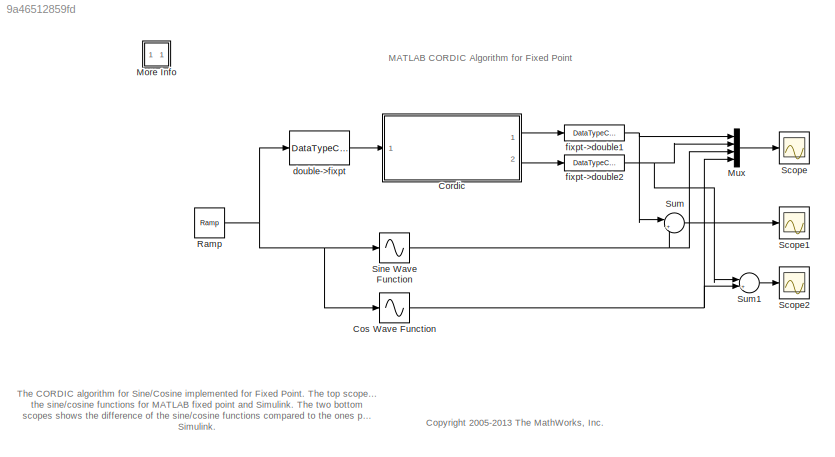
MODEL slx_9a46512859fd
KIND model
CONFIG AbsTol = auto
CONFIG FixedStep = 0.1
CONFIG MaxStep = auto
CONFIG MinStep = auto
CONFIG RelTol = 1e-3
CONFIG SampleTimeConstraint = Unconstrained
CONFIG Solver = FixedStepDiscrete
CONFIG SolverMode = Auto
CONFIG SolverName = FixedStepDiscrete
CONFIG StartTime = 0.0
CONFIG StopTime = 10.0
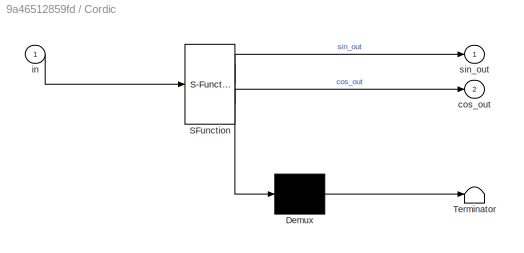
BLOCK [SubSystem] Cordic
  ErrorFcn = Stateflow.Translate.translate
  PermitHierarchicalResolution = ParametersOnly
  Ports = [1, 2]
  RequestExecContextInheritance = off
  SFBlockType = MATLAB Function
  TreatAsAtomicUnit = on
  Variant = off
BLOCK [Demux] Cordic/ Demux 
  Outputs = 1
  Ports = [1, 1]
BLOCK [S-Function] Cordic/ SFunction 
  EnableBusSupport = off
  FunctionName = sf_sfun
  PortCounts = [1 3]
  Ports = [1, 3]
  SFunctionDeploymentMode = off
  Tag = Stateflow S-Function eml_cordic_tmp 1
BLOCK [Terminator] Cordic/ Terminator 
BLOCK [Outport] Cordic/cos_out
  IconDisplay = Port number
  Port = 2
BLOCK [Inport] Cordic/in
  IconDisplay = Port number
BLOCK [Outport] Cordic/sin_out
  IconDisplay = Port number
BLOCK [Sin] Cos Wave Function
  Phase = pi/2
  Ports = [1, 1]
  SampleTime = 0
  TimeSource = Use external signal
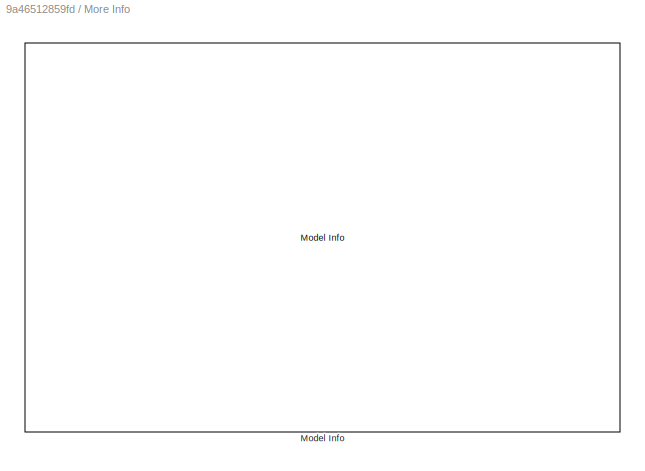
BLOCK [SubSystem] More Info
  Ports = []
  RequestExecContextInheritance = off
  Variant = off
BLOCK [Reference] More Info/Model Info  REF=simulink/Model-Wide
Utilities/Model Info
  DisplayStringWithTags = Model Description:\n-------------------\n\n%<Description>
  Frame = on
  HorizontalTextAlignment = Left
  LeftAlignmentValue = 0.02
  MaskDisplayString = Model Description:\n-------------------\n\nMATLAB CORDIC Algorithm for Fixed Point\n\nThis model demonstrates how you could implement the CORDIC algorithm for\nfixed point. The CORDIC algorithm is an interative algorithm to compute the\nsine/cosine functions by the use of a small lookup table.\n\nThe MATLAB Function blocks in this model support code generation with\nReal-Time Workshop and Real-Tim...<+353ch>
  Ports = []
  SourceBlock = simulink/Model-Wide\nUtilities/Model Info
  SourceType = CMBlock
BLOCK [Mux] Mux
  DisplayOption = bar
  Ports = [4, 1]
BLOCK [Reference] Ramp  REF=simulink/Sources/Ramp
  Ports = [0, 1]
  SourceBlock = simulink/Sources/Ramp
  SourceType = Ramp
  VectorParams1D = on
  X0 = 0
  slope = 1
  start = 0
BLOCK [Scope] Scope
  DataFormat = StructureWithTime
  Decimation = 1
  Grid = on
  LimitDataPoints = off
  MaxDataPoints = 5000
  NumInputPorts = 1
  Ports = [1]
  SampleInput = off
  SampleTime = -1
  SaveName = ScopeData
  SaveToWorkspace = off
  ShowLegends = off
  TickLabels = OneTimeTick
  TimeRange = auto
  YMax = 1.2
  YMin = -1.2
  ZoomMode = on
BLOCK [Scope] Scope1
  DataFormat = StructureWithTime
  Decimation = 1
  Grid = on
  LimitDataPoints = off
  MaxDataPoints = 5000
  NumInputPorts = 1
  Ports = [1]
  SampleInput = off
  SampleTime = -1
  SaveName = ScopeData1
  SaveToWorkspace = off
  ShowLegends = off
  TickLabels = OneTimeTick
  TimeRange = auto
  YMax = 2e-008
  YMin = -2e-008
  ZoomMode = on
BLOCK [Scope] Scope2
  DataFormat = StructureWithTime
  Decimation = 1
  Grid = on
  LimitDataPoints = off
  MaxDataPoints = 5000
  NumInputPorts = 1
  Ports = [1]
  SampleInput = off
  SampleTime = -1
  SaveName = ScopeData2
  SaveToWorkspace = off
  ShowLegends = off
  TickLabels = OneTimeTick
  TimeRange = auto
  YMax = 2e-008
  YMin = -2e-008
  ZoomMode = on
BLOCK [Sin] Sine Wave Function
  Ports = [1, 1]
  SampleTime = 0
  TimeSource = Use external signal
BLOCK [Sum] Sum
  IconShape = round
  InputSameDT = off
  Inputs = |+-
  OutDataTypeStr = Inherit: Inherit via internal rule
  Ports = [2, 1]
  SaturateOnIntegerOverflow = off
BLOCK [Sum] Sum1
  IconShape = round
  InputSameDT = off
  Inputs = |+-
  OutDataTypeStr = Inherit: Inherit via internal rule
  Ports = [2, 1]
  SaturateOnIntegerOverflow = off
BLOCK [DataTypeConversion] double->fixpt
  OutDataTypeStr = fixdt(1,32,27)
  RndMeth = Floor
  SaturateOnIntegerOverflow = off
BLOCK [DataTypeConversion] fixpt->double1
  OutDataTypeStr = double
  RndMeth = Floor
  SaturateOnIntegerOverflow = off
BLOCK [DataTypeConversion] fixpt->double2
  OutDataTypeStr = double
  RndMeth = Floor
  SaturateOnIntegerOverflow = off
ANNOTATION (root): <copyright redacted>
ANNOTATION (root): MATLAB CORDIC Algorithm for Fixed Point
ANNOTATION (root): The CORDIC algorithm for Sine/Cosine implemented for Fixed Point. The top scope shows the sine/cosine functions for MATLAB fixed point and Simulink. The two bottom scopes shows the difference of the sine/cosine functions compared to the ones provided by Simulink.
LINE Cordic:1 -> fixpt->double1:1
LINE Cordic:2 -> fixpt->double2:1
NET Cos Wave Function:1 -> Mux:4, Sum1:2
LINE Mux:1 -> Scope:1
NET Ramp:1 -> Cos Wave Function:1, Sine Wave Function:1, double->fixpt:1
NET Sine Wave Function:1 -> Mux:3, Sum:2
LINE Sum1:1 -> Scope2:1
LINE Sum:1 -> Scope1:1
LINE double->fixpt:1 -> Cordic:1
NET fixpt->double1:1 -> Mux:1, Sum:1
NET fixpt->double2:1 -> Mux:2, Sum1:1
note: NET lines group one-source signal fan-out (src -> all destinations, sorted); 1:1 wires keep LINE
CHART Cordic states=1 transitions=1
  STATE_LABEL 'eML_blk_kernel()'
  STATE_LABEL "SCRIPT:\nfunction [sin_out,cos_out]  = cordic_sin_cos(in)\n% Test for cordic implementation of sin/cos\n\nwordLength = 32;\nfractionLength = 27;\n\nwL = wordLength;\nfL = fractionLength;\n\nt = numerictype(1,wordLength,fractionLength);\n\nm = fimath('MaxProductWordLength',wL,'MaxSumWordLength',wL,...\n           'ProductMode','SpecifyPrecision',...\n           'ProductWordLength',wL,...\n           'ProductFract...<+3608ch>"
